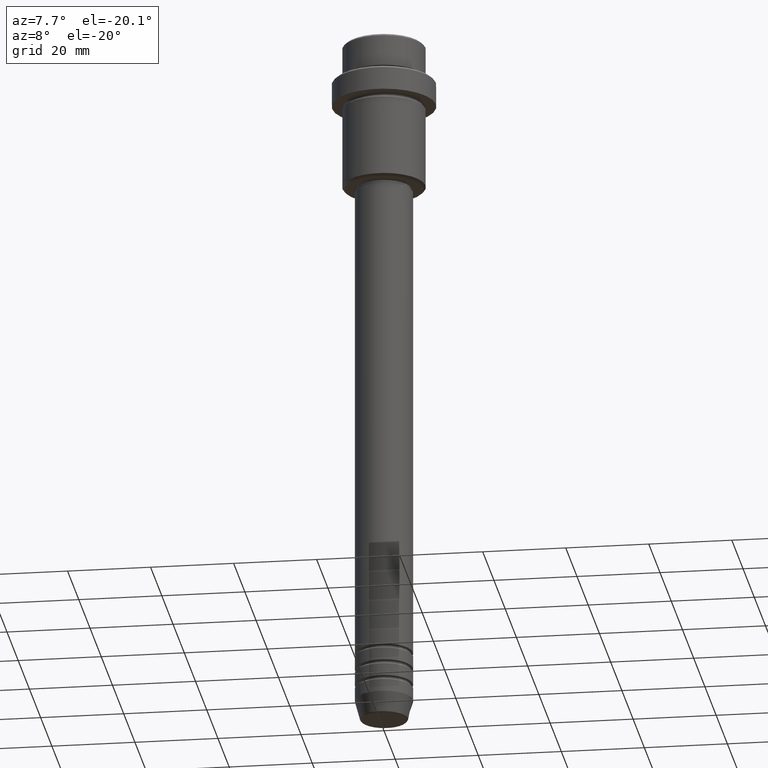
[diagram: clean part render]
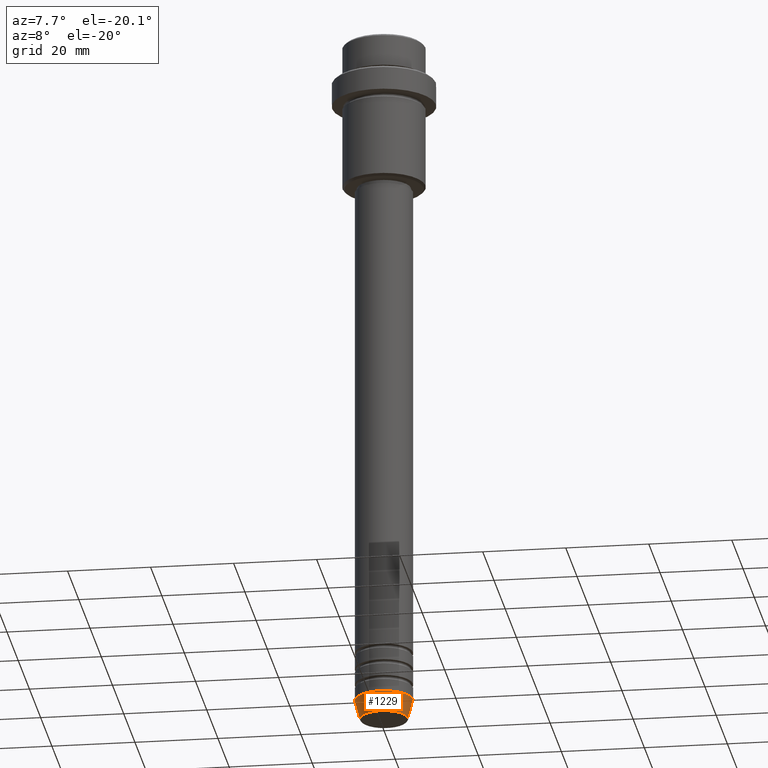
[diagram: same view with one face highlighted and labeled with its STEP entity id]
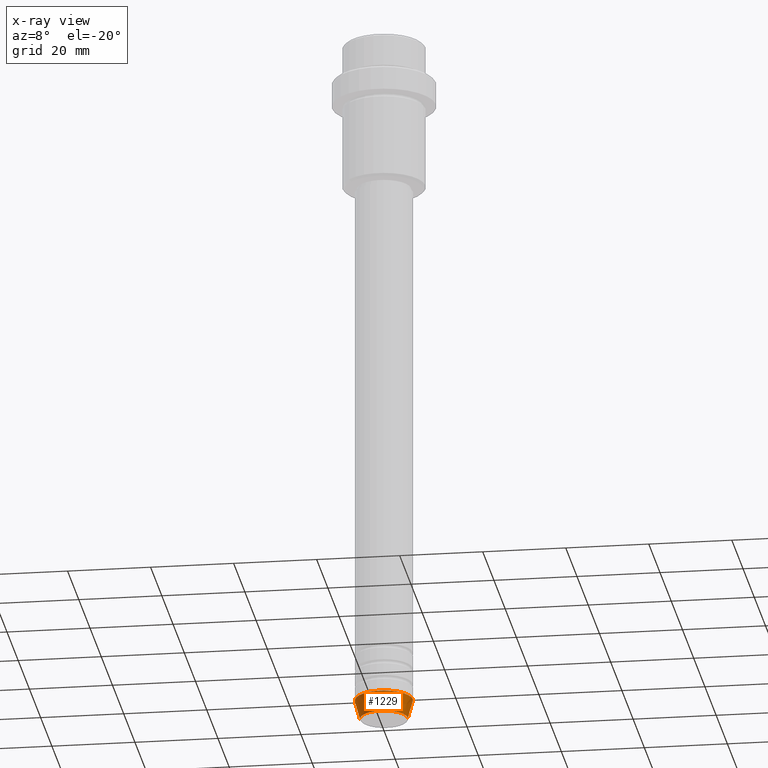
[diagram: x-ray of the same camera — body ghosted, the highlighted face saturated]
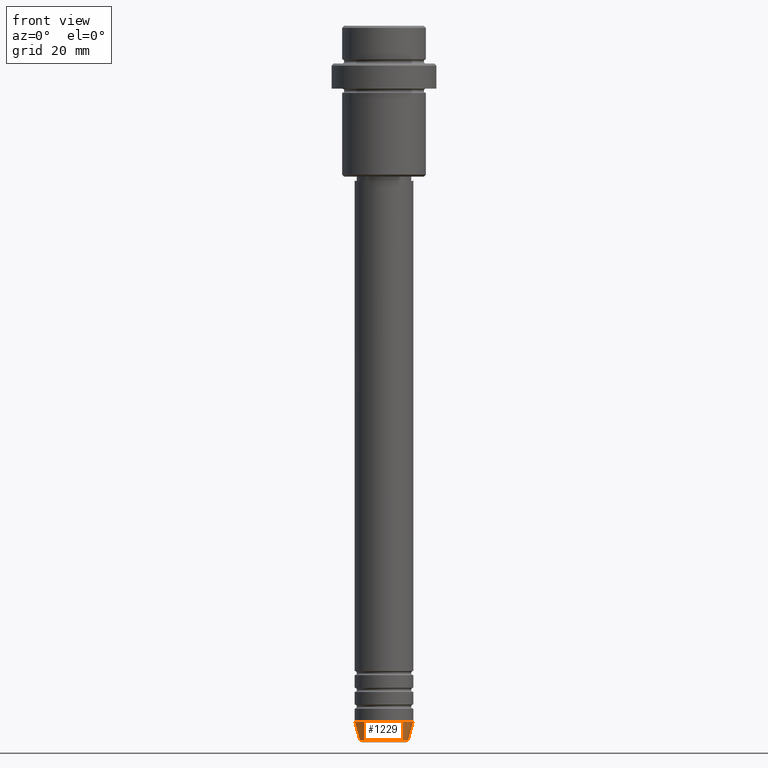
[diagram: same view with one face highlighted and labeled with its STEP entity id]
A machine part, auxiliary view. The second image highlights one B-rep face of the part: STEP entity #1229.
The next image is the same camera in x-ray: the body ghosted, the highlighted face saturated — about 0% of this face is hidden behind the body in this view.
A second angle (front view) of the same face is appended — the face is thin or edge-on in the first view.
In plain terms, the highlighted conical surface has half-angle 15 deg.
Its self-contained STEP definition (entity closure, byte-faithful):
#70 = CARTESIAN_POINT ( 'NONE',  ( -7.000000000000000000, 8.572527594031473190E-16, -166.0000000000000000 ) ) ;
#103 = EDGE_CURVE ( 'NONE', #1349, #1098, #1235, .T. ) ;
#129 = CARTESIAN_POINT ( 'NONE',  ( 5.759553456999437770, 0.000000000000000000, -170.6294095225512422 ) ) ;
#179 = AXIS2_PLACEMENT_3D ( 'NONE', #952, #1036, #276 ) ;
#195 = VECTOR ( 'NONE', #1233, 1000.000000000000114 ) ;
#223 = ORIENTED_EDGE ( 'NONE', *, *, #483, .F. ) ;
#229 = DIRECTION ( 'NONE',  ( -0.000000000000000000, -0.000000000000000000, 1.000000000000000000 ) ) ;
#250 = VECTOR ( 'NONE', #1372, 1000.000000000000114 ) ;
#276 = DIRECTION ( 'NONE',  ( 1.000000000000000000, 0.000000000000000000, 0.000000000000000000 ) ) ;
#316 = CONICAL_SURFACE ( 'NONE', #179, 7.000000000000000000, 0.2617993877991514617 ) ;
#368 = LINE ( 'NONE', #791, #195 ) ;
#462 = ORIENTED_EDGE ( 'NONE', *, *, #103, .T. ) ;
#483 = EDGE_CURVE ( 'NONE', #1252, #1086, #966, .T. ) ;
#492 = FACE_OUTER_BOUND ( 'NONE', #713, .T. ) ;
#557 = CARTESIAN_POINT ( 'NONE',  ( 7.000000000000000000, 0.000000000000000000, -166.0000000000000000 ) ) ;
#608 = AXIS2_PLACEMENT_3D ( 'NONE', #1326, #229, #1116 ) ;
#622 = CARTESIAN_POINT ( 'NONE',  ( 0.000000000000000000, 0.000000000000000000, -166.0000000000000000 ) ) ;
#675 = EDGE_CURVE ( 'NONE', #1098, #1086, #368, .T. ) ;
#713 = EDGE_LOOP ( 'NONE', ( #1287, #462, #996, #223 ) ) ;
#742 = DIRECTION ( 'NONE',  ( 1.000000000000000000, 0.000000000000000000, 0.000000000000000000 ) ) ;
#791 = CARTESIAN_POINT ( 'NONE',  ( 7.000000000000000000, 0.000000000000000000, -166.0000000000000000 ) ) ;
#843 = CARTESIAN_POINT ( 'NONE',  ( -7.000000000000000000, 8.572527594031473190E-16, -166.0000000000000000 ) ) ;
#901 = AXIS2_PLACEMENT_3D ( 'NONE', #622, #1072, #742 ) ;
#952 = CARTESIAN_POINT ( 'NONE',  ( 0.000000000000000000, 0.000000000000000000, -166.0000000000000000 ) ) ;
#957 = LINE ( 'NONE', #70, #250 ) ;
#966 = CIRCLE ( 'NONE', #901, 7.000000000000000000 ) ;
#996 = ORIENTED_EDGE ( 'NONE', *, *, #675, .T. ) ;
#1036 = DIRECTION ( 'NONE',  ( -0.000000000000000000, -0.000000000000000000, 1.000000000000000000 ) ) ;
#1072 = DIRECTION ( 'NONE',  ( -0.000000000000000000, -0.000000000000000000, 1.000000000000000000 ) ) ;
#1075 = CARTESIAN_POINT ( 'NONE',  ( -5.759553456999437770, 7.812973149831953745E-16, -170.6294095225512422 ) ) ;
#1086 = VERTEX_POINT ( 'NONE', #557 ) ;
#1098 = VERTEX_POINT ( 'NONE', #129 ) ;
#1116 = DIRECTION ( 'NONE',  ( 1.000000000000000000, 0.000000000000000000, 0.000000000000000000 ) ) ;
#1229 = ADVANCED_FACE ( 'NONE', ( #492 ), #316, .T. ) ;
#1233 = DIRECTION ( 'NONE',  ( 0.2588190451025227379, 0.000000000000000000, 0.9659258262890676461 ) ) ;
#1235 = CIRCLE ( 'NONE', #608, 5.759553456999437770 ) ;
#1252 = VERTEX_POINT ( 'NONE', #843 ) ;
#1287 = ORIENTED_EDGE ( 'NONE', *, *, #1403, .F. ) ;
#1326 = CARTESIAN_POINT ( 'NONE',  ( 0.000000000000000000, 0.000000000000000000, -170.6294095225512422 ) ) ;
#1349 = VERTEX_POINT ( 'NONE', #1075 ) ;
#1372 = DIRECTION ( 'NONE',  ( -0.2588190451025227379, 3.169619151431788361E-17, 0.9659258262890676461 ) ) ;
#1403 = EDGE_CURVE ( 'NONE', #1349, #1252, #957, .T. ) ;